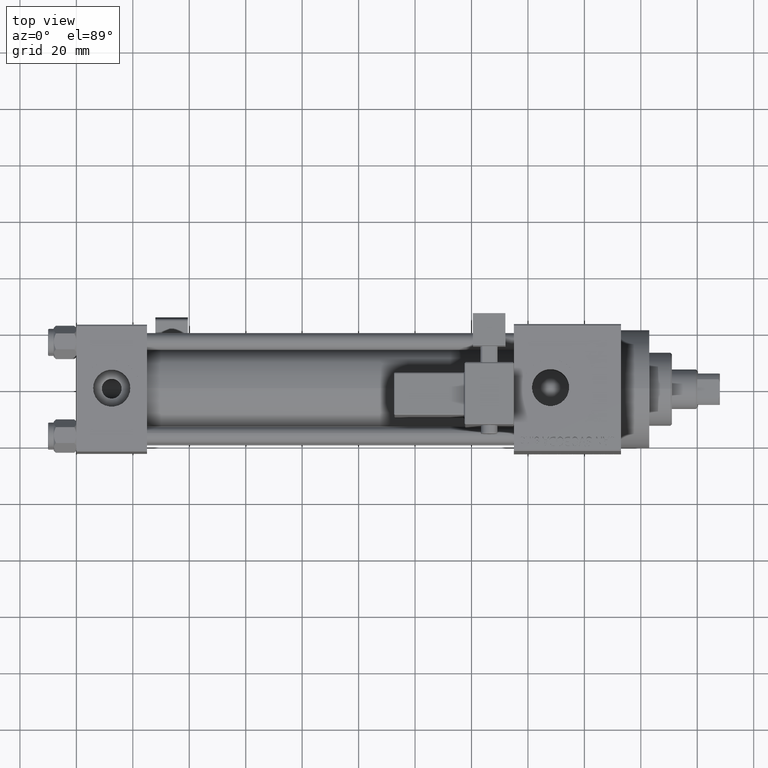
[diagram: clean part render]
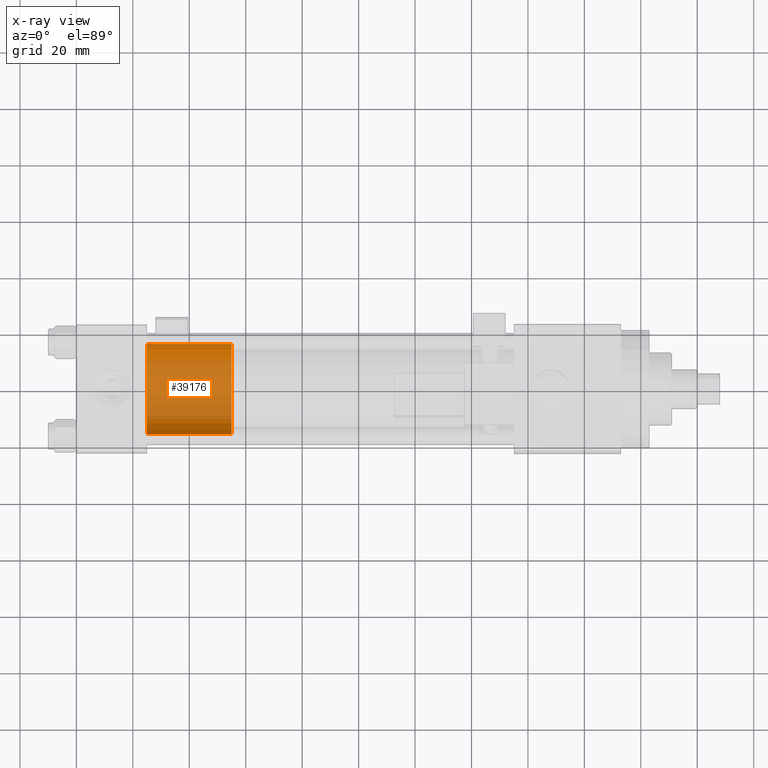
[diagram: x-ray — body ghosted, one internal face saturated and labeled with its STEP entity id]
A machine part, top view, then the same camera in x-ray: the body is ghosted and one INTERNAL B-rep face — a face not visible from any outside direction — is saturated and labeled: STEP entity #39176.
In plain terms, the highlighted cylindrical surface (partial cylindrical patch) has radius 16 mm, axis along (-1, 0, 0).
Its self-contained STEP definition (entity closure, byte-faithful):
#3750 = ORIENTED_EDGE ( 'NONE', *, *, #8345, .T. ) ;
#4950 = AXIS2_PLACEMENT_3D ( 'NONE', #11722, #5398, #12215 ) ;
#5398 = DIRECTION ( 'NONE',  ( 0.000000000000000000, 0.000000000000000000, 1.000000000000000000 ) ) ;
#7246 = AXIS2_PLACEMENT_3D ( 'NONE', #20937, #32502, #13412 ) ;
#7936 = CARTESIAN_POINT ( 'NONE',  ( 16.00000000000000000, 1.959434878635765131E-15, 0.000000000000000000 ) ) ;
#8081 = VERTEX_POINT ( 'NONE', #20745 ) ;
#8345 = EDGE_CURVE ( 'NONE', #20536, #45502, #44323, .T. ) ;
#11722 = CARTESIAN_POINT ( 'NONE',  ( 0.000000000000000000, 0.000000000000000000, 0.000000000000000000 ) ) ;
#12160 = AXIS2_PLACEMENT_3D ( 'NONE', #41788, #38765, #15430 ) ;
#12215 = DIRECTION ( 'NONE',  ( 1.000000000000000000, 0.000000000000000000, 0.000000000000000000 ) ) ;
#13412 = DIRECTION ( 'NONE',  ( -1.000000000000000000, 0.000000000000000000, 0.000000000000000000 ) ) ;
#15430 = DIRECTION ( 'NONE',  ( 1.000000000000000000, 0.000000000000000000, 0.000000000000000000 ) ) ;
#16627 = CARTESIAN_POINT ( 'NONE',  ( -16.00000000000000000, 0.000000000000000000, 30.00000000000000000 ) ) ;
#16762 = CARTESIAN_POINT ( 'NONE',  ( -16.00000000000000000, 0.000000000000000000, 0.000000000000000000 ) ) ;
#20536 = VERTEX_POINT ( 'NONE', #34233 ) ;
#20745 = CARTESIAN_POINT ( 'NONE',  ( -16.00000000000000000, 0.000000000000000000, 30.00000000000000000 ) ) ;
#20937 = CARTESIAN_POINT ( 'NONE',  ( 0.000000000000000000, 0.000000000000000000, 30.00000000000000000 ) ) ;
#21733 = CARTESIAN_POINT ( 'NONE',  ( 16.00000000000000000, 1.959434878635765131E-15, 30.00000000000000000 ) ) ;
#22870 = EDGE_CURVE ( 'NONE', #20536, #8081, #36193, .T. ) ;
#23926 = LINE ( 'NONE', #16627, #39372 ) ;
#24209 = CIRCLE ( 'NONE', #4950, 16.00000000000000000 ) ;
#24744 = ORIENTED_EDGE ( 'NONE', *, *, #22870, .F. ) ;
#31953 = DIRECTION ( 'NONE',  ( -0.000000000000000000, -0.000000000000000000, -1.000000000000000000 ) ) ;
#32245 = CYLINDRICAL_SURFACE ( 'NONE', #7246, 16.00000000000000000 ) ;
#32502 = DIRECTION ( 'NONE',  ( -0.000000000000000000, -0.000000000000000000, -1.000000000000000000 ) ) ;
#34233 = CARTESIAN_POINT ( 'NONE',  ( 16.00000000000000000, 1.959434878635765131E-15, 30.00000000000000000 ) ) ;
#36193 = CIRCLE ( 'NONE', #12160, 16.00000000000000000 ) ;
#38765 = DIRECTION ( 'NONE',  ( 0.000000000000000000, 0.000000000000000000, 1.000000000000000000 ) ) ;
#39176 = ADVANCED_FACE ( 'NONE', ( #47272 ), #32245, .T. ) ;
#39372 = VECTOR ( 'NONE', #31953, 1000.000000000000000 ) ;
#41445 = EDGE_CURVE ( 'NONE', #8081, #47697, #23926, .T. ) ;
#41788 = CARTESIAN_POINT ( 'NONE',  ( 0.000000000000000000, 0.000000000000000000, 30.00000000000000000 ) ) ;
#41925 = ORIENTED_EDGE ( 'NONE', *, *, #41445, .F. ) ;
#43506 = EDGE_LOOP ( 'NONE', ( #24744, #3750, #48421, #41925 ) ) ;
#44070 = DIRECTION ( 'NONE',  ( -0.000000000000000000, -0.000000000000000000, -1.000000000000000000 ) ) ;
#44323 = LINE ( 'NONE', #21733, #45375 ) ;
#45375 = VECTOR ( 'NONE', #44070, 1000.000000000000000 ) ;
#45502 = VERTEX_POINT ( 'NONE', #7936 ) ;
#47272 = FACE_OUTER_BOUND ( 'NONE', #43506, .T. ) ;
#47697 = VERTEX_POINT ( 'NONE', #16762 ) ;
#47909 = EDGE_CURVE ( 'NONE', #45502, #47697, #24209, .T. ) ;
#48421 = ORIENTED_EDGE ( 'NONE', *, *, #47909, .T. ) ;